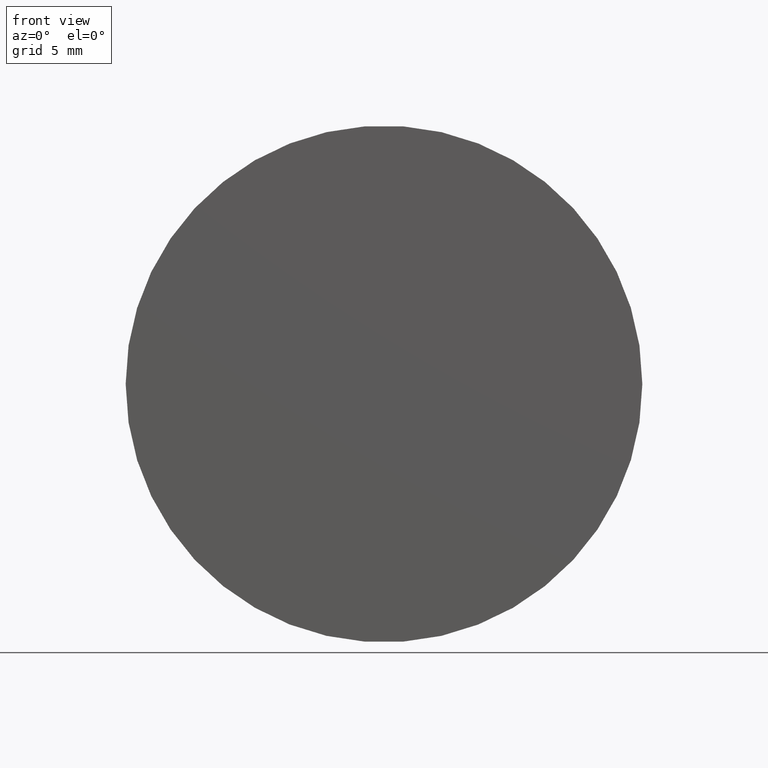
[diagram: clean part render]
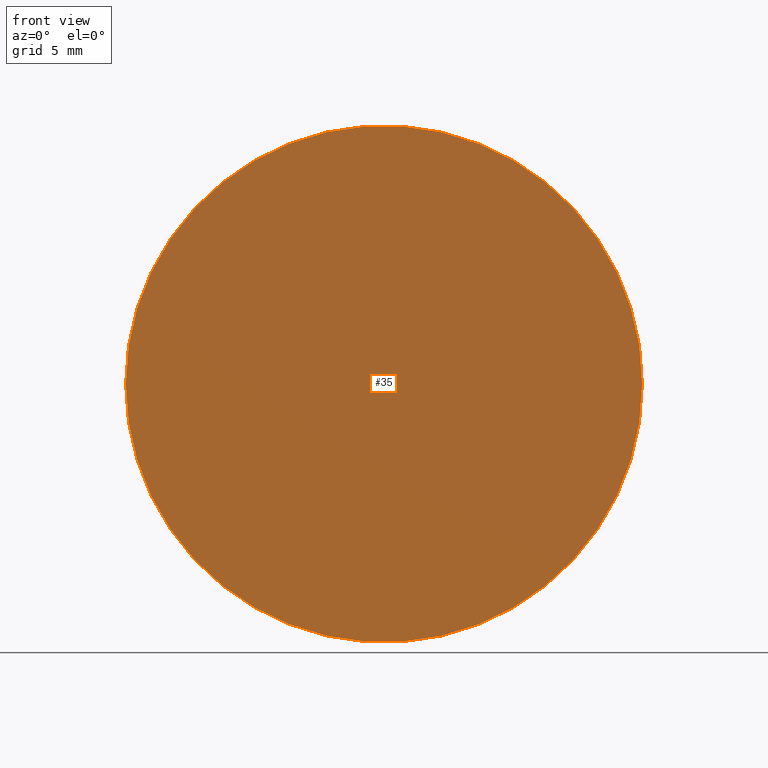
[diagram: same view with one face highlighted and labeled with its STEP entity id]
A machine part, front view. The second image highlights one B-rep face of the part: STEP entity #35.
In plain terms, the highlighted planar face has unit normal (-0, -1, 0).
Its self-contained STEP definition (entity closure, byte-faithful):
#2 = ORIENTED_EDGE ( 'NONE', *, *, #24, .F. ) ;
#11 = PLANE ( 'NONE',  #125 ) ;
#24 = EDGE_CURVE ( 'NONE', #152, #117, #91, .T. ) ;
#35 = ADVANCED_FACE ( 'NONE', ( #86 ), #11, .T. ) ;
#42 = ORIENTED_EDGE ( 'NONE', *, *, #154, .F. ) ;
#44 = DIRECTION ( 'NONE',  ( -1.000000000000000000, 1.791150080385585583E-17, 0.000000000000000000 ) ) ;
#65 = CARTESIAN_POINT ( 'NONE',  ( -15.00000000000000000, -1.899731832913170901E-15, 0.000000000000000000 ) ) ;
#70 = CIRCLE ( 'NONE', #182, 15.00000000000000000 ) ;
#86 = FACE_OUTER_BOUND ( 'NONE', #122, .T. ) ;
#88 = DIRECTION ( 'NONE',  ( 1.000000000000000000, -1.791150080385584967E-17, 0.000000000000000000 ) ) ;
#91 = CIRCLE ( 'NONE', #96, 15.00000000000000000 ) ;
#92 = DIRECTION ( 'NONE',  ( -1.000000000000000000, 1.791150080385585583E-17, 0.000000000000000000 ) ) ;
#96 = AXIS2_PLACEMENT_3D ( 'NONE', #191, #166, #44 ) ;
#111 = CARTESIAN_POINT ( 'NONE',  ( -4.212971753347078429E-32, -2.168404344971008868E-15, 0.000000000000000000 ) ) ;
#117 = VERTEX_POINT ( 'NONE', #177 ) ;
#122 = EDGE_LOOP ( 'NONE', ( #2, #42 ) ) ;
#125 = AXIS2_PLACEMENT_3D ( 'NONE', #201, #169, #88 ) ;
#127 = DIRECTION ( 'NONE',  ( 1.791150080385584967E-17, 1.000000000000000000, -0.000000000000000000 ) ) ;
#152 = VERTEX_POINT ( 'NONE', #65 ) ;
#154 = EDGE_CURVE ( 'NONE', #117, #152, #70, .T. ) ;
#166 = DIRECTION ( 'NONE',  ( 1.791150080385584967E-17, 1.000000000000000000, -0.000000000000000000 ) ) ;
#169 = DIRECTION ( 'NONE',  ( -1.791150080385584967E-17, -1.000000000000000000, 0.000000000000000000 ) ) ;
#177 = CARTESIAN_POINT ( 'NONE',  ( 15.00000000000000000, -2.437076857028846835E-15, 1.836970198721029589E-15 ) ) ;
#182 = AXIS2_PLACEMENT_3D ( 'NONE', #111, #127, #92 ) ;
#191 = CARTESIAN_POINT ( 'NONE',  ( -4.212971753347078429E-32, -2.168404344971008868E-15, 0.000000000000000000 ) ) ;
#201 = CARTESIAN_POINT ( 'NONE',  ( -1.885761055337444664E-32, -1.052821355389433778E-15, 0.000000000000000000 ) ) ;